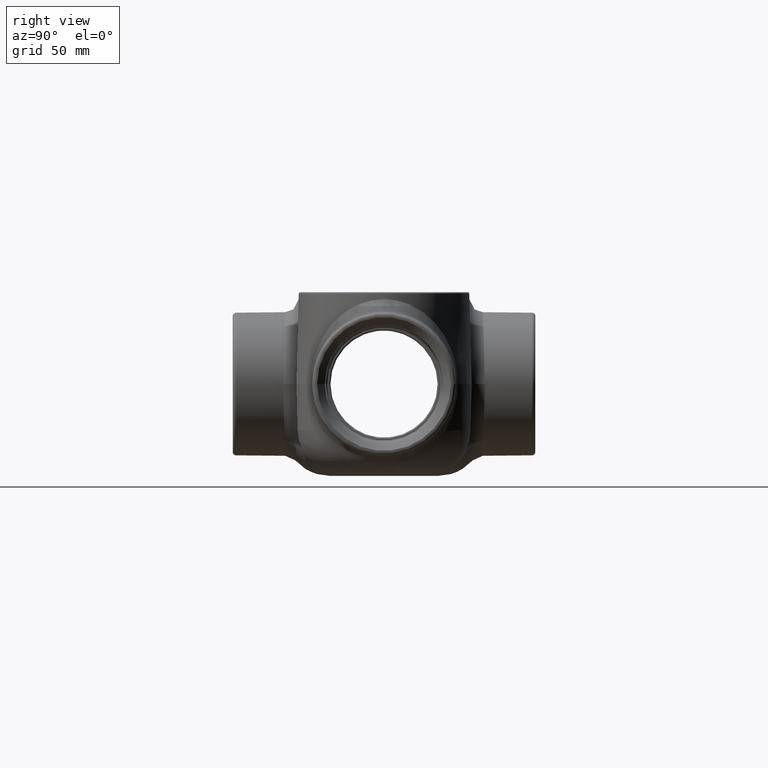
[diagram: clean part render]
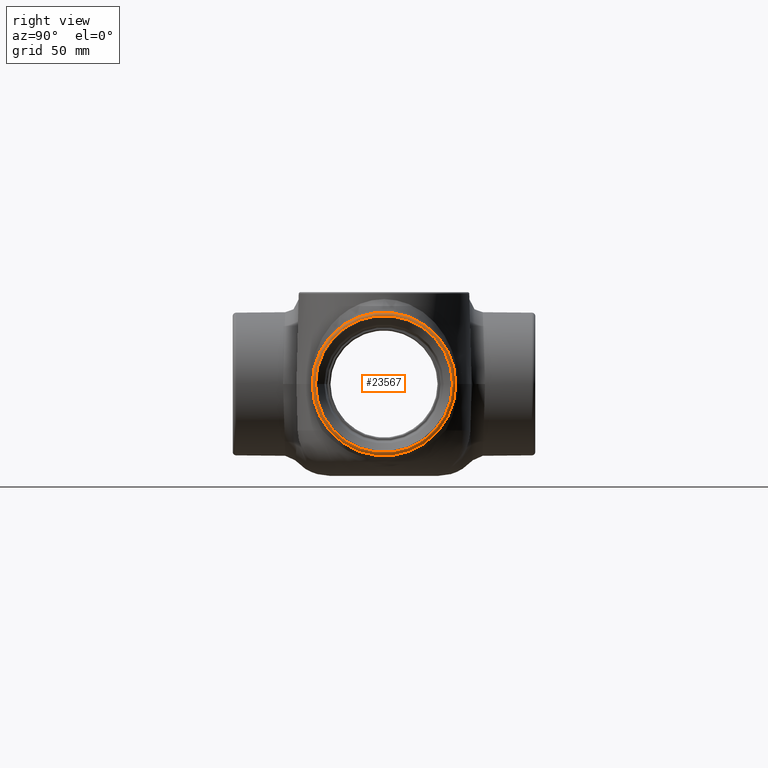
[diagram: same view with one face highlighted and labeled with its STEP entity id]
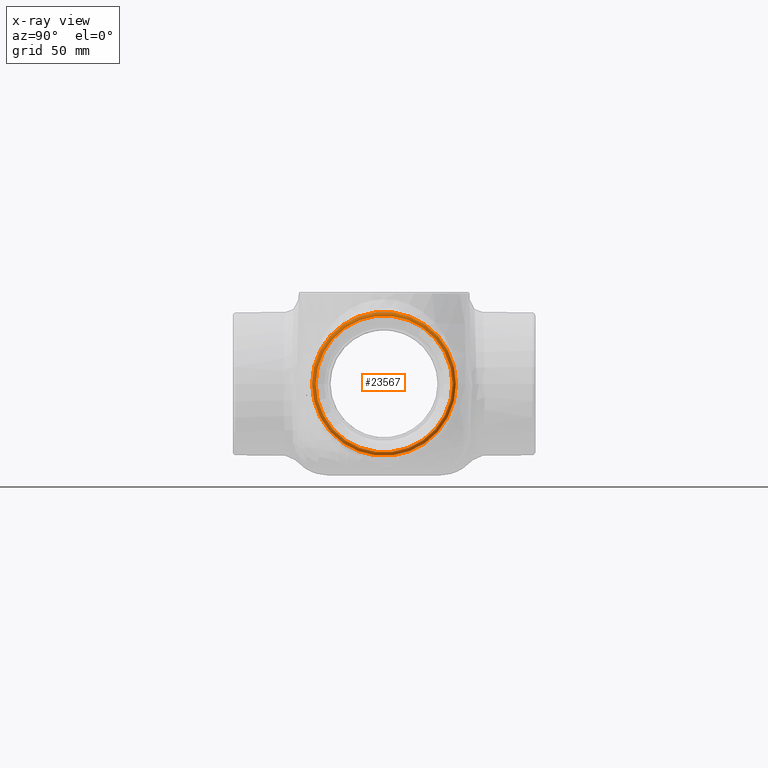
[diagram: x-ray of the same camera — body ghosted, the highlighted face saturated]
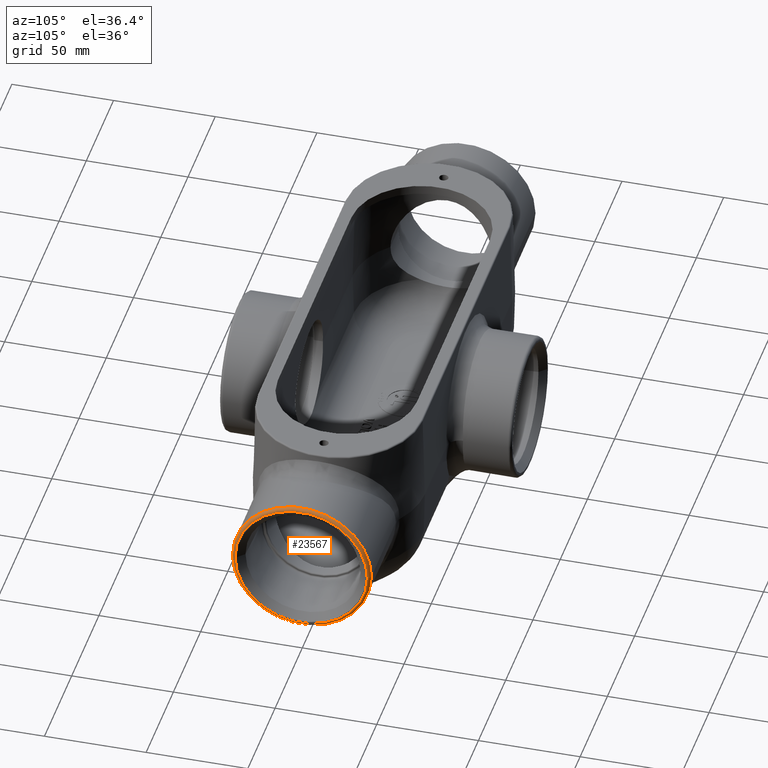
[diagram: same view with one face highlighted and labeled with its STEP entity id]
A machine part, right view. The second image highlights one B-rep face of the part: STEP entity #23567.
The next image is the same camera in x-ray: the body ghosted, the highlighted face saturated — about 0% of this face is hidden behind the body in this view.
A second angle (auxiliary view) of the same face is appended — the face is thin or edge-on in the first view.
In plain terms, the highlighted toroidal blend (fillet) surface has major radius 32.5437 mm and minor (blend) radius 1.5875 mm.
Its self-contained STEP definition (entity closure, byte-faithful):
#33=TOROIDAL_SURFACE('',#24992,1.28125,0.0625);
#146=FACE_BOUND('',#9529,.T.);
#8129=FACE_OUTER_BOUND('',#9528,.T.);
#9528=EDGE_LOOP('',(#19811));
#9529=EDGE_LOOP('',(#19812));
#10247=CIRCLE('',#24285,1.34375);
#10332=CIRCLE('',#24993,1.28125);
#10399=VERTEX_POINT('',#31958);
#11854=VERTEX_POINT('',#37223);
#12705=EDGE_CURVE('',#10399,#10399,#10247,.T.);
#14706=EDGE_CURVE('',#11854,#11854,#10332,.T.);
#19811=ORIENTED_EDGE('',*,*,#14706,.T.);
#19812=ORIENTED_EDGE('',*,*,#12705,.T.);
#23567=ADVANCED_FACE('',(#8129,#146),#33,.T.);
#24285=AXIS2_PLACEMENT_3D('',#31959,#25537,#25538);
#24992=AXIS2_PLACEMENT_3D('',#37222,#28690,#28691);
#24993=AXIS2_PLACEMENT_3D('',#37224,#28692,#28693);
#25537=DIRECTION('center_axis',(1.,0.,0.));
#25538=DIRECTION('ref_axis',(0.,-1.,0.));
#28690=DIRECTION('center_axis',(-1.,0.,0.));
#28691=DIRECTION('ref_axis',(0.,0.,1.));
#28692=DIRECTION('center_axis',(-1.,0.,0.));
#28693=DIRECTION('ref_axis',(0.,-1.,0.));
#31958=CARTESIAN_POINT('',(5.921875,1.34375,-1.71875));
#31959=CARTESIAN_POINT('Origin',(5.921875,1.74838271594513E-16,-1.71875));
#37222=CARTESIAN_POINT('Origin',(5.921875,1.74838271594513E-16,-1.71875));
#37223=CARTESIAN_POINT('',(5.984375,1.28125,-1.71875));
#37224=CARTESIAN_POINT('Origin',(5.984375,1.74838271594513E-16,-1.71875));